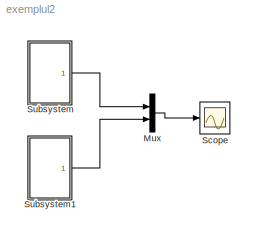
MODEL exemplul2
KIND model
BLOCK [Mux] Mux
  DisplayOption = bar
  Inputs = 2
  Ports = [2, 1]
BLOCK [Scope] Scope
  DataFormat = StructureWithTime
  Floating = off
  NumInputPorts = 1
  Ports = [1]
  SampleTime = 0
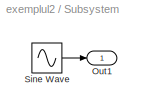
BLOCK [SubSystem] Subsystem
  FunctionWithSeparateData = off
  MaskHideContents = off
  MinAlgLoopOccurrences = off
  Opaque = off
  Ports = [0, 1]
  PropExecContextOutsideSubsystem = off
  RTWSystemCode = Auto
  RequestExecContextInheritance = off
BLOCK [Outport] Subsystem/Out1
  IconDisplay = Port number
BLOCK [Sin] Subsystem/Sine Wave
  Ports = [0, 1]
  SampleTime = 0
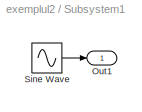
BLOCK [SubSystem] Subsystem1
  FunctionWithSeparateData = off
  MaskHideContents = off
  MinAlgLoopOccurrences = off
  Opaque = off
  Ports = [0, 1]
  PropExecContextOutsideSubsystem = off
  RTWSystemCode = Auto
  RequestExecContextInheritance = off
BLOCK [Outport] Subsystem1/Out1
  IconDisplay = Port number
BLOCK [Sin] Subsystem1/Sine Wave
  Frequency = 2
  Ports = [0, 1]
  SampleTime = 0
LINE Mux:1 -> Scope:1
LINE Subsystem/Sine Wave:1 -> Subsystem/Out1:1
LINE Subsystem1/Sine Wave:1 -> Subsystem1/Out1:1
LINE Subsystem1:1 -> Mux:2
LINE Subsystem:1 -> Mux:1
